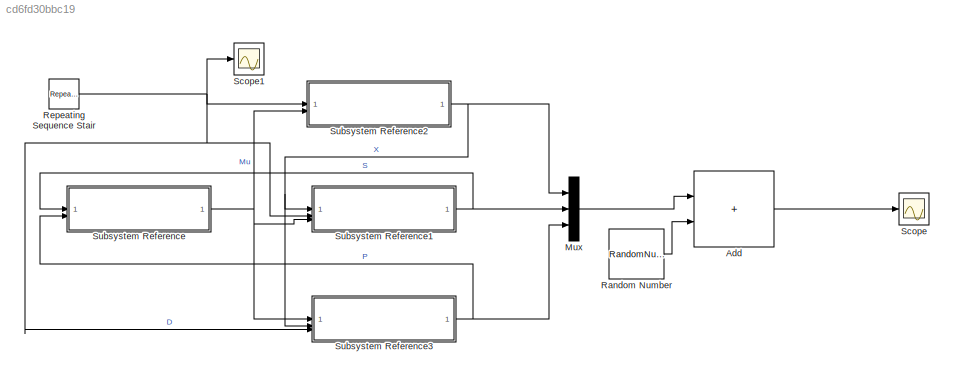
MODEL slx_cd6fd30bbc19
KIND model
CONFIG AbsTol = auto
CONFIG EnableMultiTasking = off
CONFIG FixedStep = auto
CONFIG MaxStep = auto
CONFIG MinStep = auto
CONFIG RelTol = 1e-3
CONFIG SampleTimeConstraint = Unconstrained
CONFIG SolverName = VariableStepAuto
CONFIG StartTime = 0.0
CONFIG StopTime = 1500
BLOCK [Sum] Add
  IconShape = rectangular
BLOCK [Mux] Mux
  DisplayOption = bar
  Inputs = 3
BLOCK [RandomNumber] Random Number
  SampleTime = 0.1
  Variance = 0.01
BLOCK [Reference] Repeating Sequence Stair  REF=simulink/Sources/Repeating
Sequence
Stair
  SourceBlock = simulink/Sources/Repeating\nSequence\nStair
  SourceType = Repeating Sequence Stair
BLOCK [Scope] Scope
  ActiveDisplayYMaximum = 22.96147677624743
  ActiveDisplayYMinimum = -2.8325448577427861
  Floating = off
  GraphicalSettings = {"Style":{"BackgroundColor":[0.12941176470588237,0.12941176470588237,0.12941176470588237],"AxesColor":[0.07058823529411765,0.07058823529411765,0.07058823529411765],"LabelsColor":[0.8509803921568627,0.8509803921568627,0.8509803921568627],"PreserveColors":false,"Visible":[true,true,true],"LineStyle":["-","-","-"],"LineWidth":[1.5,1.5,1.5],"BarWidth":[0.9,0.9,0.9],"LineColor":["auto","auto","auto"],"...<+2102ch>
  MultipleDisplayCache = [{"MaxYLimMag":22.96147677624743,"MaxYLimReal":22.96147677624743,"MinYLimMag":0,"MinYLimReal":-2.8325448577427861,"PlotAsMagnitudePhase":false,"ShowGrid":true,"ShowLegend":false,"Title":"%<SignalLabel>","YLabel":""}]
  NumInputPorts = 1
  ScopeFrameLocation = window
  WasSavedAsWebScope = on
  WindowPosition = [488.000000,222.000000,560.000000,420.000000,]
BLOCK [Scope] Scope1
  ActiveDisplayYMaximum = 1
  ActiveDisplayYMinimum = -1
  DataLoggingVariableName = ScopeData1
  Floating = off
  GraphicalSettings = {"GraphicalSettings":{"LegacySettings":true,"Style":{"AxesScalingProperties":{"AlignXAxis":"Center","AlignYAxis":"Center","AutoScaleXAxisLimits":false,"AxesScaling":"Manual","AxesScalingNumUpdates":10,"ScaleAxesLimitsAtStop":true,"XAxisDataRange":100,"YAxisDataRange":80},"Style":{"AxesColor":"[0.0705882352941176 0.0705882352941176 0.0705882352941176]","BackgroundColor":"[0.129411764705882 0.129411...<+843ch>
  LayoutDimensionsString = [1 1]
  MultipleDisplayCache = [{"MaxYLimMag":1,"MaxYLimReal":1,"MinYLimMag":0,"MinYLimReal":-1,"PlotAsMagnitudePhase":false,"ShowGrid":true,"ShowLegend":false,"Title":"%<SignalLabel>","YLabel":""}]
  NumInputPorts = 1
  WasSavedAsWebScope = on
BLOCK [SubSystem] Subsystem Reference
  ReferencedSubsystem = Mu_SP_oldversion
BLOCK [SubSystem] Subsystem Reference1
  ReferencedSubsystem = Substrate_oldVersion
BLOCK [SubSystem] Subsystem Reference2
  ReferencedSubsystem = Biomass_X_oldversion
BLOCK [SubSystem] Subsystem Reference3
  ReferencedSubsystem = Product_P_oldversion
LINE Add:1 -> Scope:1
LINE Mux:1 -> Add:1
LINE Random Number:1 -> Add:2
NET Repeating Sequence Stair:1 -> Scope1:1, Subsystem Reference1:2, Subsystem Reference2:1, Subsystem Reference3:3
NET Subsystem Reference1:1 -> Mux:2, Subsystem Reference:1
NET Subsystem Reference2:1 -> Mux:1, Subsystem Reference1:1, Subsystem Reference3:2
NET Subsystem Reference3:1 -> Mux:3, Subsystem Reference:2
NET Subsystem Reference:1 -> Subsystem Reference1:3, Subsystem Reference2:2, Subsystem Reference3:1
note: NET lines group one-source signal fan-out (src -> all destinations, sorted); 1:1 wires keep LINE
